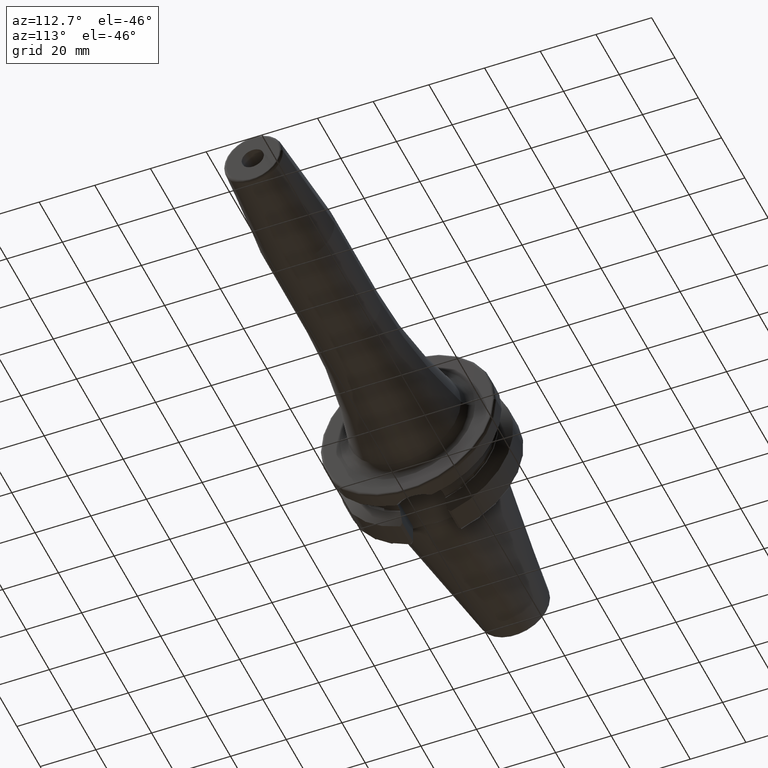
[diagram: clean part render]
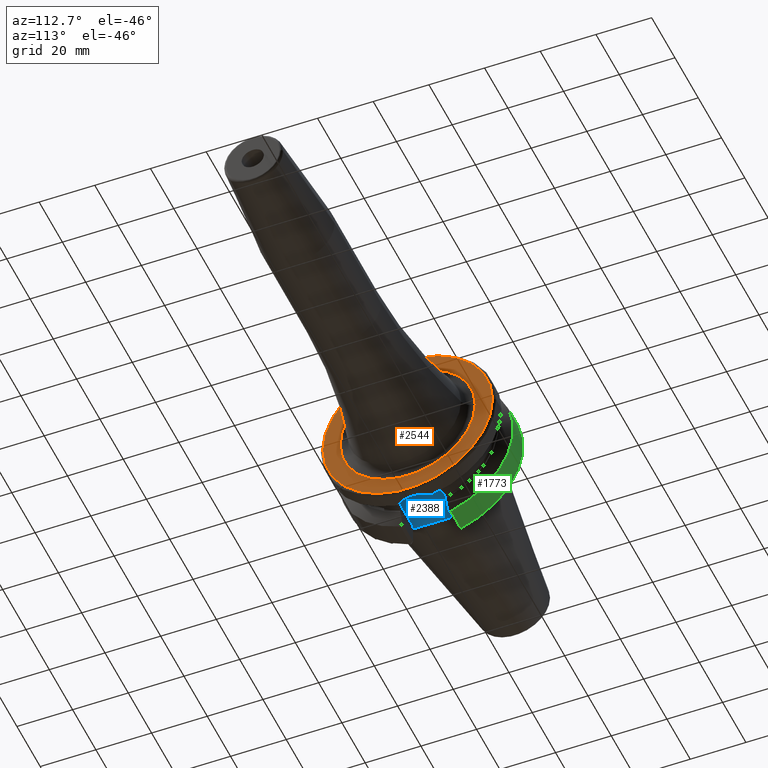
[diagram: same view with three faces highlighted in distinct colors, each labeled with its STEP entity id]
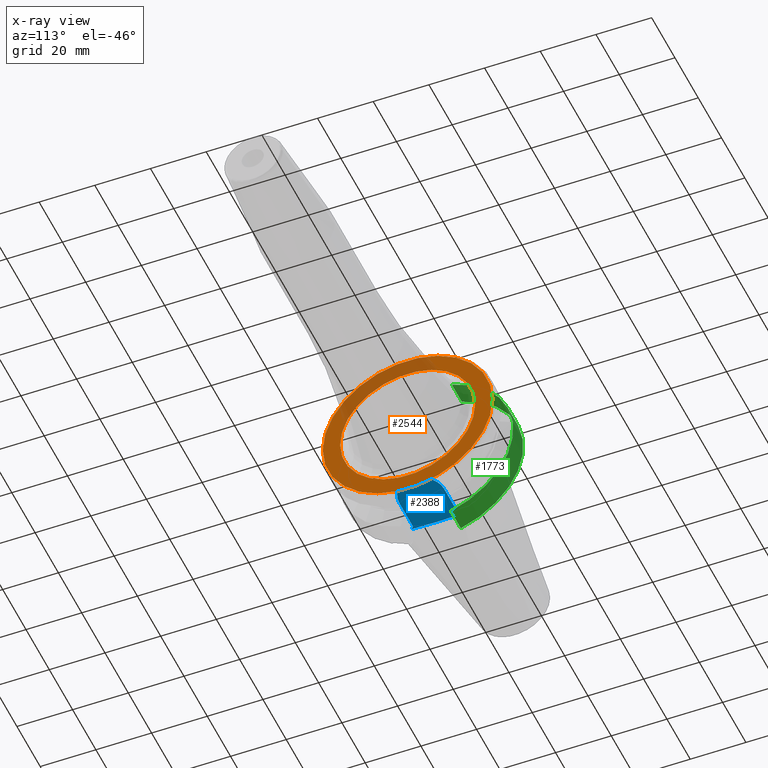
[diagram: x-ray of the same camera — body ghosted, the three highlighted faces saturated]
A machine part, auxiliary view with three faces highlighted in distinct colors.
The next image is the same camera in x-ray (body ghosted, the three faces saturated) — at least one of them is partly hidden behind the body in this view.
Their STEP definitions:

[orange] entity #2544 — the highlighted planar face has unit normal (1, 0, 0).
#816=CARTESIAN_POINT('',(2.7E1,0.E0,0.E0));
#817=DIRECTION('',(1.E0,0.E0,0.E0));
#818=DIRECTION('',(0.E0,1.E0,0.E0));
#819=AXIS2_PLACEMENT_3D('',#816,#817,#818);
#831=CARTESIAN_POINT('',(2.7E1,0.E0,0.E0));
#832=DIRECTION('',(-1.E0,0.E0,0.E0));
#833=DIRECTION('',(0.E0,1.E0,0.E0));
#834=AXIS2_PLACEMENT_3D('',#831,#832,#833);
#836=CARTESIAN_POINT('',(2.7E1,0.E0,0.E0));
#837=DIRECTION('',(1.E0,0.E0,0.E0));
#838=DIRECTION('',(0.E0,-1.E0,0.E0));
#839=AXIS2_PLACEMENT_3D('',#836,#837,#838);
#841=CARTESIAN_POINT('',(2.7E1,0.E0,0.E0));
#842=DIRECTION('',(1.E0,0.E0,0.E0));
#843=DIRECTION('',(0.E0,1.E0,0.E0));
#844=AXIS2_PLACEMENT_3D('',#841,#842,#843);
#1324=CARTESIAN_POINT('',(2.7E1,3.04875E1,0.E0));
#1325=VERTEX_POINT('',#1324);
#1326=CARTESIAN_POINT('',(2.7E1,-3.04875E1,0.E0));
#1327=VERTEX_POINT('',#1326);
#1437=CARTESIAN_POINT('',(2.7E1,-2.425148613529E1,-1.670963942889E-14));
#1438=CARTESIAN_POINT('',(2.7E1,2.425148613529E1,1.373968894187E-14));
#1439=VERTEX_POINT('',#1437);
#1440=VERTEX_POINT('',#1438);
#2529=CARTESIAN_POINT('',(2.7E1,0.E0,0.E0));
#2530=DIRECTION('',(1.E0,0.E0,0.E0));
#2531=DIRECTION('',(0.E0,-1.E0,0.E0));
#2532=AXIS2_PLACEMENT_3D('',#2529,#2530,#2531);
#2533=PLANE('',#2532);
#2534=ORIENTED_EDGE('',*,*,#2524,.T.);
#2535=ORIENTED_EDGE('',*,*,#2508,.F.);
#2536=EDGE_LOOP('',(#2534,#2535));
#2537=FACE_OUTER_BOUND('',#2536,.F.);
#2539=ORIENTED_EDGE('',*,*,#2538,.T.);
#2541=ORIENTED_EDGE('',*,*,#2540,.T.);
#2542=EDGE_LOOP('',(#2539,#2541));
#2543=FACE_BOUND('',#2542,.F.);
#2544=ADVANCED_FACE('',(#2537,#2543),#2533,.T.);
#820=CIRCLE('',#819,3.04875E1);
#835=CIRCLE('',#834,3.04875E1);
#840=CIRCLE('',#839,2.425148613529E1);
#845=CIRCLE('',#844,2.425148613529E1);
#2508=EDGE_CURVE('',#1325,#1327,#820,.T.);
#2524=EDGE_CURVE('',#1325,#1327,#835,.T.);
#2538=EDGE_CURVE('',#1439,#1440,#840,.T.);
#2540=EDGE_CURVE('',#1440,#1439,#845,.T.);

[blue] entity #2388 — the highlighted planar face has unit normal (0, 0, 1).
#116=CARTESIAN_POINT('',(2.E0,4.388977671395E0,-2.245E1));
#117=CARTESIAN_POINT('',(2.E0,3.970864393606E0,-2.245E1));
#118=CARTESIAN_POINT('',(1.981114905491E0,3.134790252882E0,-2.245E1));
#119=CARTESIAN_POINT('',(1.935909306664E0,1.881114481695E0,-2.245E1));
#120=CARTESIAN_POINT('',(1.903922826087E0,6.271978198695E-1,-2.245E1));
#121=CARTESIAN_POINT('',(1.903921553157E0,-6.271174199701E-1,-2.245E1));
#122=CARTESIAN_POINT('',(1.935907277484E0,-1.881058975901E0,-2.245E1));
#123=CARTESIAN_POINT('',(1.981114329553E0,-3.134769380598E0,-2.245E1));
#124=CARTESIAN_POINT('',(2.E0,-3.970858027266E0,-2.245E1));
#125=CARTESIAN_POINT('',(2.E0,-4.388977671395E0,-2.245E1));
#147=DIRECTION('',(7.071067811865E-1,-7.071067811865E-1,0.E0));
#148=VECTOR('',#147,1.414213562373E0);
#149=CARTESIAN_POINT('',(2.E0,9.095E0,-2.245E1));
#150=LINE('',#149,#148);
#738=DIRECTION('',(-7.071067811865E-1,-7.071067811865E-1,0.E0));
#739=VECTOR('',#738,1.414213562373E0);
#740=CARTESIAN_POINT('',(3.E0,-8.095E0,-2.245E1));
#741=LINE('',#740,#739);
#742=DIRECTION('',(-1.E0,0.E0,0.E0));
#743=VECTOR('',#742,1.2155E1);
#744=CARTESIAN_POINT('',(1.5155E1,8.095E0,-2.245E1));
#745=LINE('',#744,#743);
#746=DIRECTION('',(0.E0,-1.E0,0.E0));
#747=VECTOR('',#746,4.706022328605E0);
#748=CARTESIAN_POINT('',(2.E0,9.095E0,-2.245E1));
#749=LINE('',#748,#747);
#750=DIRECTION('',(0.E0,-1.E0,0.E0));
#751=VECTOR('',#750,4.706022328605E0);
#752=CARTESIAN_POINT('',(2.E0,-4.388977671395E0,-2.245E1));
#753=LINE('',#752,#751);
#754=DIRECTION('',(1.E0,0.E0,0.E0));
#755=VECTOR('',#754,1.2155E1);
#756=CARTESIAN_POINT('',(3.E0,-8.095E0,-2.245E1));
#757=LINE('',#756,#755);
#758=CARTESIAN_POINT('',(1.5155E1,0.E0,-2.245E1));
#759=DIRECTION('',(0.E0,0.E0,1.E0));
#760=DIRECTION('',(0.E0,-1.E0,0.E0));
#761=AXIS2_PLACEMENT_3D('',#758,#759,#760);
#1336=CARTESIAN_POINT('',(1.5155E1,-8.095E0,-2.245E1));
#1337=CARTESIAN_POINT('',(1.5155E1,8.095E0,-2.245E1));
#1338=VERTEX_POINT('',#1336);
#1339=VERTEX_POINT('',#1337);
#1340=CARTESIAN_POINT('',(2.E0,4.388977671395E0,-2.245E1));
#1341=VERTEX_POINT('',#1340);
#1342=CARTESIAN_POINT('',(2.E0,-4.388977671395E0,-2.245E1));
#1343=VERTEX_POINT('',#1342);
#1389=CARTESIAN_POINT('',(3.E0,8.095E0,-2.245E1));
#1391=VERTEX_POINT('',#1389);
#1393=CARTESIAN_POINT('',(2.E0,9.095E0,-2.245E1));
#1395=VERTEX_POINT('',#1393);
#1399=CARTESIAN_POINT('',(2.E0,-9.095E0,-2.245E1));
#1400=VERTEX_POINT('',#1399);
#1401=CARTESIAN_POINT('',(3.E0,-8.095E0,-2.245E1));
#1403=VERTEX_POINT('',#1401);
#2373=CARTESIAN_POINT('',(0.E0,0.E0,-2.245E1));
#2374=DIRECTION('',(0.E0,0.E0,1.E0));
#2375=DIRECTION('',(1.E0,0.E0,0.E0));
#2376=AXIS2_PLACEMENT_3D('',#2373,#2374,#2375);
#2377=PLANE('',#2376);
#2378=ORIENTED_EDGE('',*,*,#1665,.T.);
#2379=ORIENTED_EDGE('',*,*,#1646,.F.);
#2380=ORIENTED_EDGE('',*,*,#1610,.T.);
#2381=ORIENTED_EDGE('',*,*,#1589,.T.);
#2382=ORIENTED_EDGE('',*,*,#1622,.T.);
#2383=ORIENTED_EDGE('',*,*,#2368,.F.);
#2384=ORIENTED_EDGE('',*,*,#1820,.T.);
#2385=ORIENTED_EDGE('',*,*,#1914,.T.);
#2386=EDGE_LOOP('',(#2378,#2379,#2380,#2381,#2382,#2383,#2384,#2385));
#2387=FACE_OUTER_BOUND('',#2386,.F.);
#2388=ADVANCED_FACE('',(#2387),#2377,.F.);
#126=B_SPLINE_CURVE_WITH_KNOTS('',3,(#116,#117,#118,#119,#120,#121,#122,#123,
#124,#125),.UNSPECIFIED.,.F.,.F.,(4,1,1,1,1,1,1,4),(0.E0,1.428571428571E-1,
2.857142857143E-1,4.285714285714E-1,5.714285714286E-1,7.142857142857E-1,
8.571428571429E-1,1.E0),.UNSPECIFIED.);
#762=CIRCLE('',#761,8.095E0);
#1589=EDGE_CURVE('',#1341,#1343,#126,.T.);
#1610=EDGE_CURVE('',#1395,#1341,#749,.T.);
#1622=EDGE_CURVE('',#1343,#1400,#753,.T.);
#1646=EDGE_CURVE('',#1395,#1391,#150,.T.);
#1665=EDGE_CURVE('',#1339,#1391,#745,.T.);
#1820=EDGE_CURVE('',#1403,#1338,#757,.T.);
#1914=EDGE_CURVE('',#1338,#1339,#762,.T.);
#2368=EDGE_CURVE('',#1403,#1400,#741,.T.);

[green] entity #1773 — the highlighted cylindrical surface (partial cylindrical patch) has radius 31.4875 mm, axis along (1, 0, 0).
#228=CARTESIAN_POINT('',(3.E0,0.E0,0.E0));
#229=DIRECTION('',(-1.E0,0.E0,0.E0));
#230=DIRECTION('',(0.E0,2.983189831898E-1,9.544662300305E-1));
#231=AXIS2_PLACEMENT_3D('',#228,#229,#230);
#233=DIRECTION('',(-9.999999999998E-1,-3.572441515959E-7,-4.802508939409E-7));
#234=VECTOR('',#233,8.572722533299E0);
#235=CARTESIAN_POINT('',(1.157272253103E1,9.052779463114E0,-3.015808084481E1));
#236=LINE('',#235,#234);
#237=CARTESIAN_POINT('',(1.157272253103E1,0.E0,0.E0));
#238=DIRECTION('',(1.E0,0.E0,0.E0));
#239=DIRECTION('',(0.E0,2.875039130802E-1,-9.577794631143E-1));
#240=AXIS2_PLACEMENT_3D('',#237,#238,#239);
#242=DIRECTION('',(9.999999999911E-1,2.496639373931E-6,-3.395432034657E-6));
#243=VECTOR('',#242,8.572722551500E0);
#244=CARTESIAN_POINT('',(2.999999979607E0,9.393297580193E0,3.005378452618E1));
#245=LINE('',#244,#243);
#576=CARTESIAN_POINT('',(2.999999997734E0,9.052776400559E0,-3.015808496187E1));
#1364=CARTESIAN_POINT('',(1.157272253103E1,9.052779463114E0,-3.015808084481E1));
#1365=CARTESIAN_POINT('',(1.157272253103E1,9.393318983190E0,3.005375541808E1));
#1366=VERTEX_POINT('',#1364);
#1367=VERTEX_POINT('',#1365);
#1379=CARTESIAN_POINT('',(3.E0,9.393347656107E0,3.005374645633E1));
#1381=VERTEX_POINT('',#1379);
#1396=VERTEX_POINT('',#576);
#1759=CARTESIAN_POINT('',(-7.002E1,0.E0,0.E0));
#1760=DIRECTION('',(1.E0,0.E0,0.E0));
#1761=DIRECTION('',(0.E0,-1.E0,0.E0));
#1762=AXIS2_PLACEMENT_3D('',#1759,#1760,#1761);
#1763=CYLINDRICAL_SURFACE('',#1762,3.14875E1);
#1765=ORIENTED_EDGE('',*,*,#1764,.T.);
#1767=ORIENTED_EDGE('',*,*,#1766,.F.);
#1768=ORIENTED_EDGE('',*,*,#1712,.T.);
#1770=ORIENTED_EDGE('',*,*,#1769,.F.);
#1771=EDGE_LOOP('',(#1765,#1767,#1768,#1770));
#1772=FACE_OUTER_BOUND('',#1771,.F.);
#1773=ADVANCED_FACE('',(#1772),#1763,.T.);
#232=CIRCLE('',#231,3.14875E1);
#241=CIRCLE('',#240,3.14875E1);
#1712=EDGE_CURVE('',#1366,#1367,#241,.T.);
#1764=EDGE_CURVE('',#1381,#1396,#232,.T.);
#1766=EDGE_CURVE('',#1366,#1396,#236,.T.);
#1769=EDGE_CURVE('',#1381,#1367,#245,.T.);